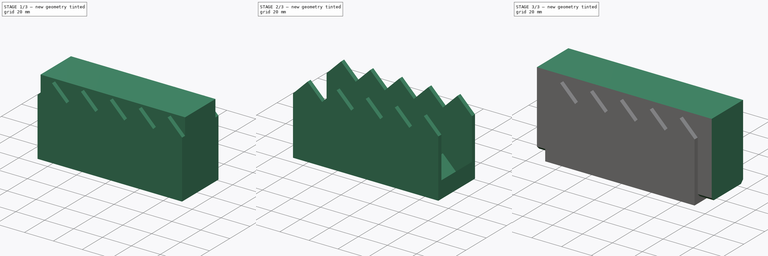
[diagram: build sequence overview — one tinted view per stage of 3, left to right]
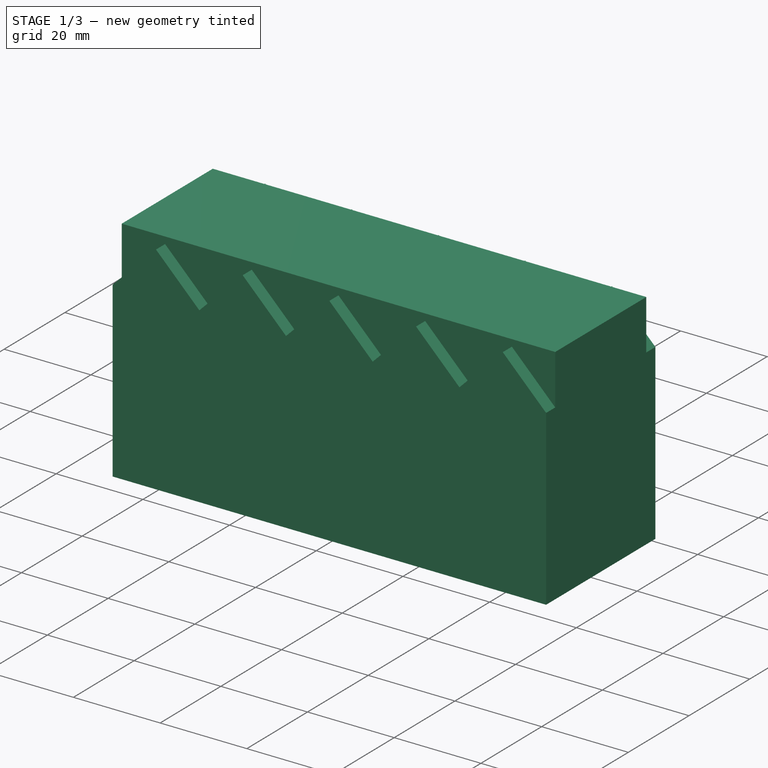
[diagram: stage 1 of 3 — iso view after this stage's code; geometry added in this stage tinted green]
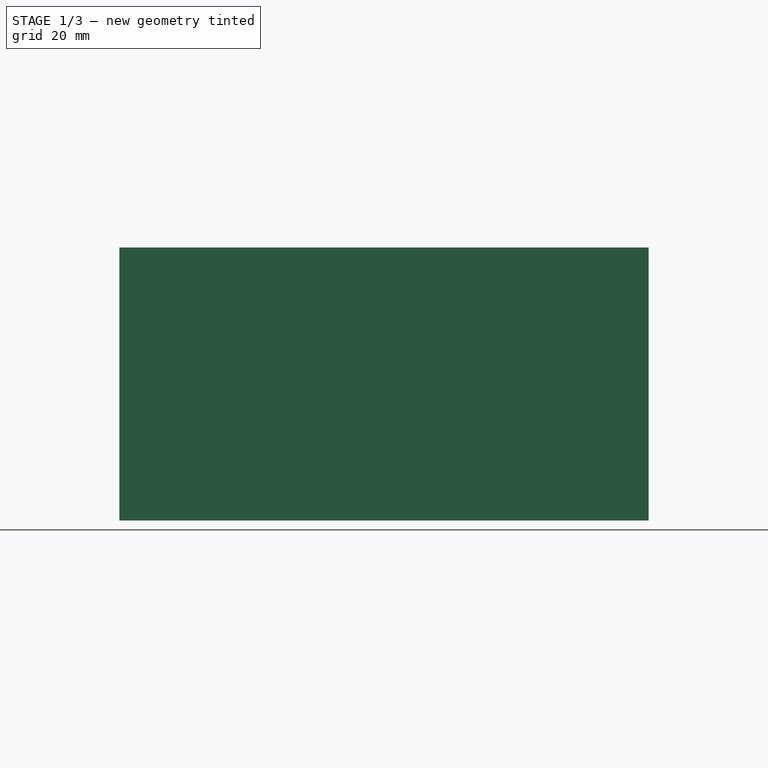
[diagram: stage 1 of 3 — front view after this stage's code; geometry added in this stage tinted green]
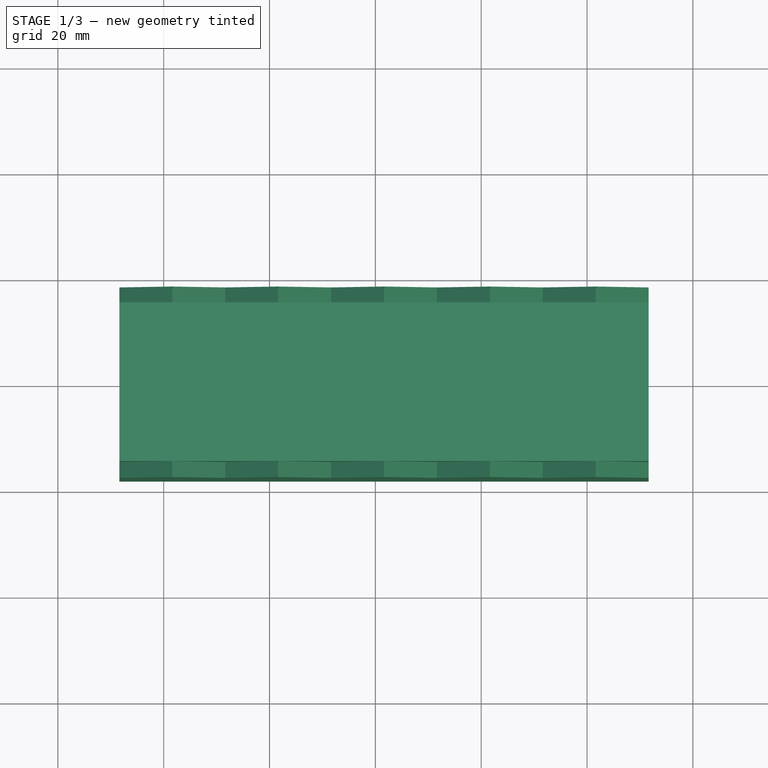
[diagram: stage 1 of 3 — top view after this stage's code; geometry added in this stage tinted green]
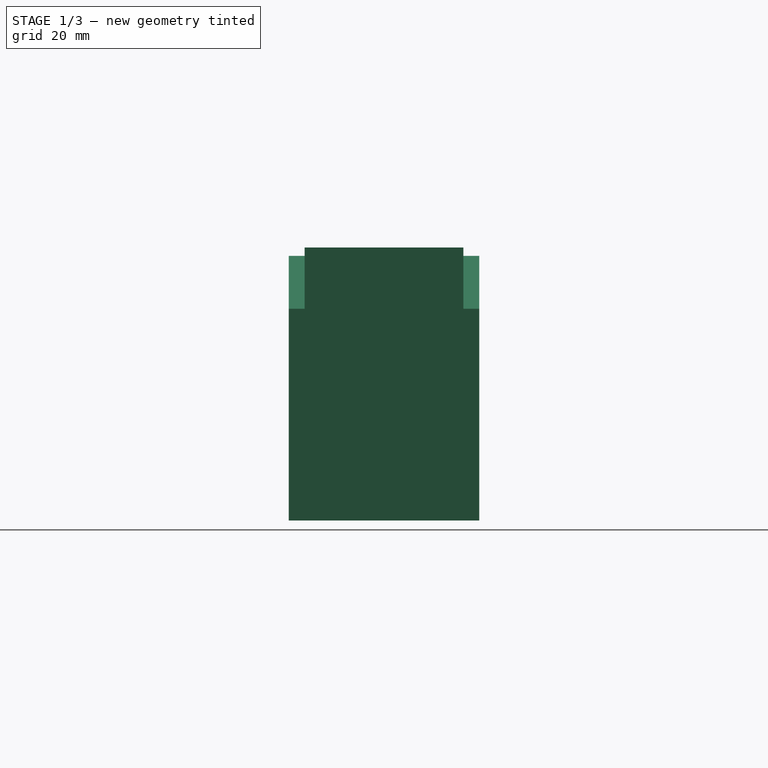
[diagram: stage 1 of 3 — right view after this stage's code; geometry added in this stage tinted green]
FCSTD DOCUMENT  (FreeCAD 0.19R24267 +148 (Git))
Label: Ex11
License: All rights reserved
LicenseURL: http://en.wikipedia.org/wiki/All_rights_reserved
objects: Sketcher::SketchObject×2, PartDesign::Pad×2, Part::Box×1, Part::Chamfer×1, PartDesign::Body×1, Part::Cut×1
note: 10 computed .brp shape members not serialized (recipe doc carries the construction recipe); baked Part::Feature solids carry a one-line shape summary decoded from their .brp

FEATURE [PartDesign::Pad] Pad  label="Main piece"
  Direction = (1,1,1)
  Length = 36
  Length2 = 100
  Midplane = true
  Placement = pos=(0,0,0) rot=(1,0,0;1.5708rad)
  Profile = -> Sketch
  Type = 0
FEATURE [PartDesign::Body] Body  label="Stairs"
  Group = -> [Sketch,Pad]
  Origin = -> Origin
  Tip = -> Pad
FEATURE [Sketcher::SketchObject] Sketch001
  FullyConstrained = false
  Placement = pos=(0,0,4) rot=(-1,0,0;1.5708rad)
  sketch-geometry (13):
    g0: LineSegment StartX=-28.3695 StartY=-23.7851 StartZ=0 EndX=71.6305 EndY=-23.7851 EndZ=0
    g1: LineSegment StartX=71.6305 StartY=-23.7851 StartZ=0 EndX=71.6305 EndY=16.2149 EndZ=0
    g2: LineSegment StartX=71.6305 StartY=16.2149 StartZ=0 EndX=61.6305 EndY=26.2149 EndZ=0
    g3: LineSegment StartX=61.6305 StartY=26.2149 StartZ=0 EndX=51.6305 EndY=16.2149 EndZ=0
    g4: LineSegment StartX=51.6305 StartY=16.2149 StartZ=0 EndX=41.6305 EndY=26.2149 EndZ=0
    g5: LineSegment StartX=41.6305 StartY=26.2149 StartZ=0 EndX=31.6305 EndY=16.2149 EndZ=0
    g6: LineSegment StartX=31.6305 StartY=16.2149 StartZ=0 EndX=21.6305 EndY=26.2149 EndZ=0
    g7: LineSegment StartX=21.6305 StartY=26.2149 StartZ=0 EndX=11.6305 EndY=16.2149 EndZ=0
    g8: LineSegment StartX=11.6305 StartY=16.2149 StartZ=0 EndX=1.63054 EndY=26.2149 EndZ=0
    g9: LineSegment StartX=1.63054 StartY=26.2149 StartZ=0 EndX=-8.36946 EndY=16.2149 EndZ=0
    g10: LineSegment StartX=-8.36946 StartY=16.2149 StartZ=0 EndX=-18.3695 EndY=26.2149 EndZ=0
    g11: LineSegment StartX=-18.3695 StartY=26.2149 StartZ=0 EndX=-28.3695 EndY=16.2149 EndZ=0
    g12: LineSegment StartX=-28.3695 StartY=16.2149 StartZ=0 EndX=-28.3695 EndY=-23.7851 EndZ=0
  constraints (38):
    c: Horizontal(g0)
    c: Vertical(g1)
    c: Coincident(g1,g2)
    c: Coincident(g2,g3)
    c: Coincident(g3,g4)
    c: Coincident(g4,g5)
    c: Coincident(g5,g6)
    c: Coincident(g6,g7)
    c: Coincident(g7,g8)
    c: Coincident(g8,g9)
    c: Coincident(g9,g10)
    c: Coincident(g10,g11)
    c: Coincident(g11,g12)
    c: Coincident(g12,g0)
    c: Vertical(g12)
    c: Horizontal(g2,g3)
    c: Horizontal(g4,g5)
    c: Horizontal(g6,g7)
    c: Horizontal(g8,g9)
    c: Horizontal(g10,g11)
    c: Horizontal(g3,g4)
    c: Horizontal(g5,g6)
    c: Horizontal(g7,g8)
    c: Horizontal(g9,g10)
    c: Equal(g2,g3)
    c: Equal(g3,g4)
    c: Equal(g4,g5)
    c: Equal(g5,g6)
    c: Equal(g6,g7)
    c: Equal(g7,g8)
    c: Equal(g8,g9)
    c: Equal(g9,g10)
    c: Equal(g10,g11)
    c: Angle(g11,g10) = 1.5708
    c: Coincident(g0,g1)
    c: DistanceY(g12,g12) = 40
    c: DistanceX(g0,g0) = 100
    c: DistanceX(g11,g9) = 20
FEATURE [PartDesign::Pad] Pad001  label="centerpiece"
  Direction = (1,1,1)
  Length = 30
  Length2 = 100
  Midplane = true
  Placement = pos=(0,0,4) rot=(-1,0,0;1.5708rad)
  Profile = -> Sketch001
  Type = 0
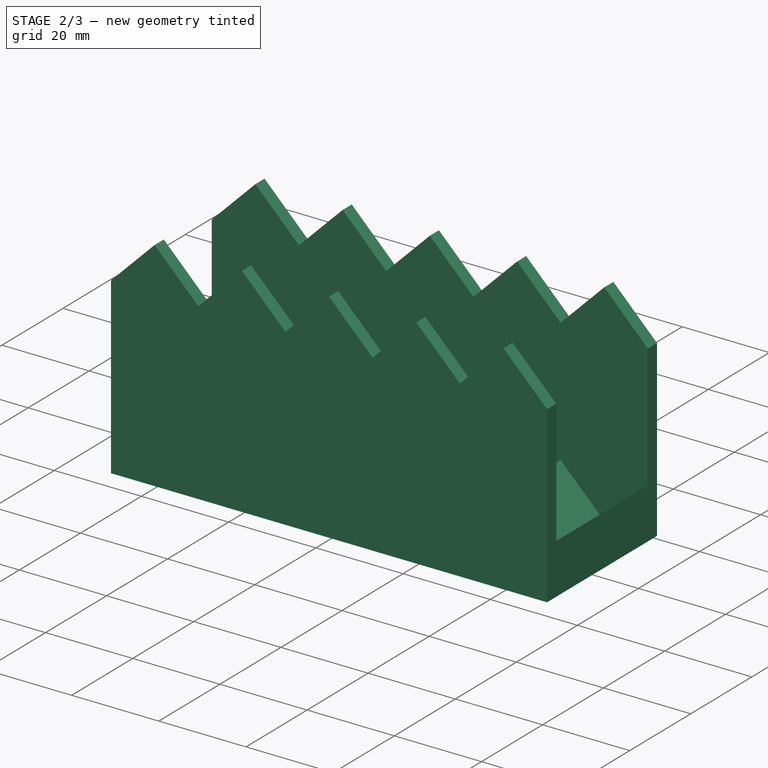
[diagram: stage 2 of 3 — iso view after this stage's code; geometry added in this stage tinted green]
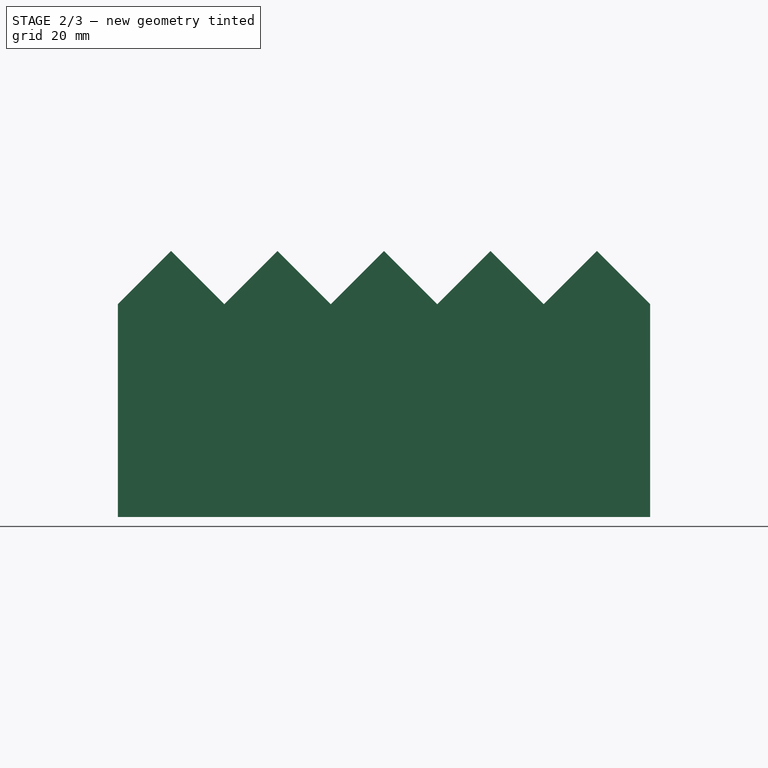
[diagram: stage 2 of 3 — front view after this stage's code; geometry added in this stage tinted green]
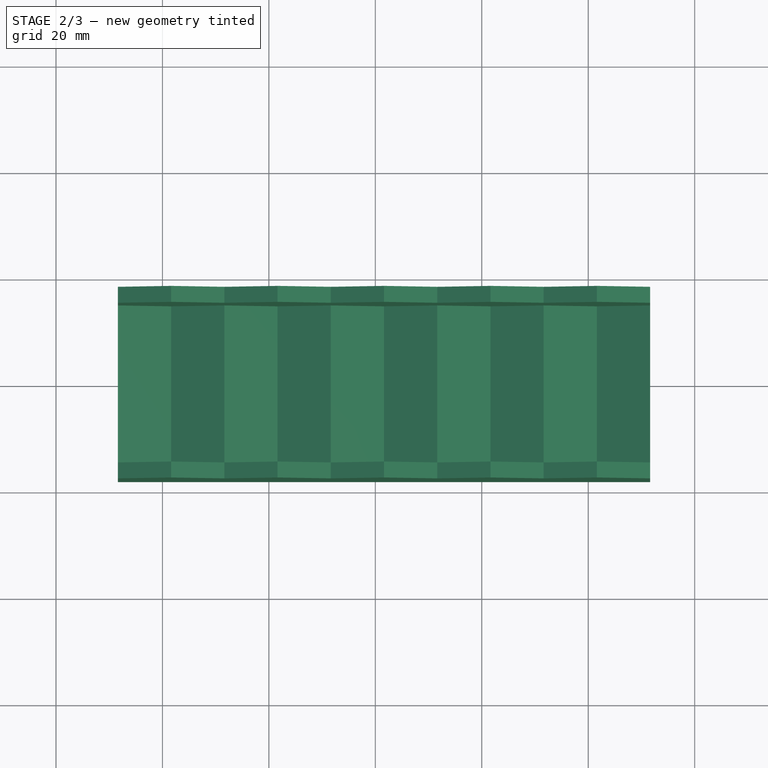
[diagram: stage 2 of 3 — top view after this stage's code; geometry added in this stage tinted green]
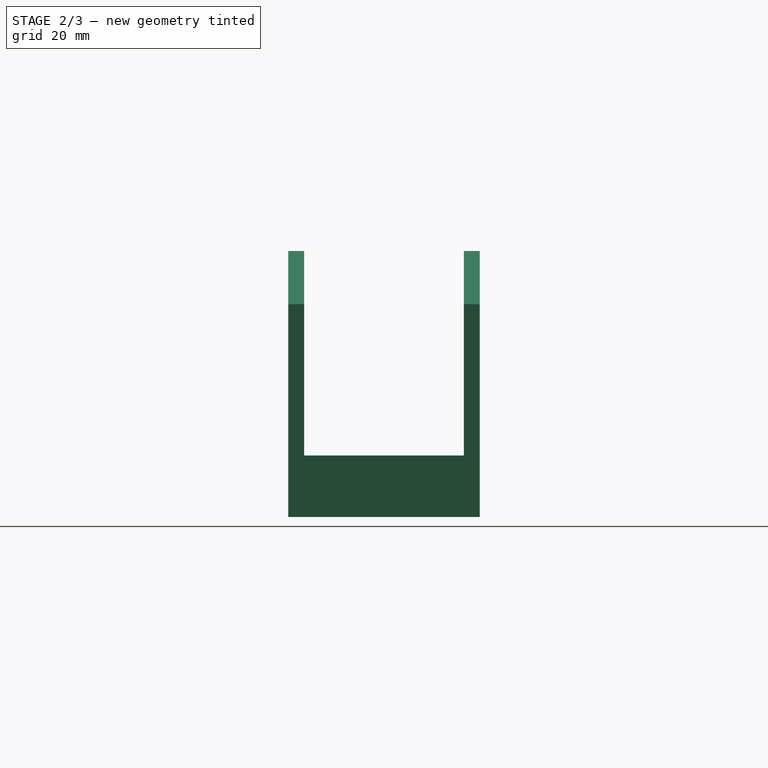
[diagram: stage 2 of 3 — right view after this stage's code; geometry added in this stage tinted green]
FEATURE [Part::Cut] Cut
  Base = -> Pad
  Tool = -> Pad001
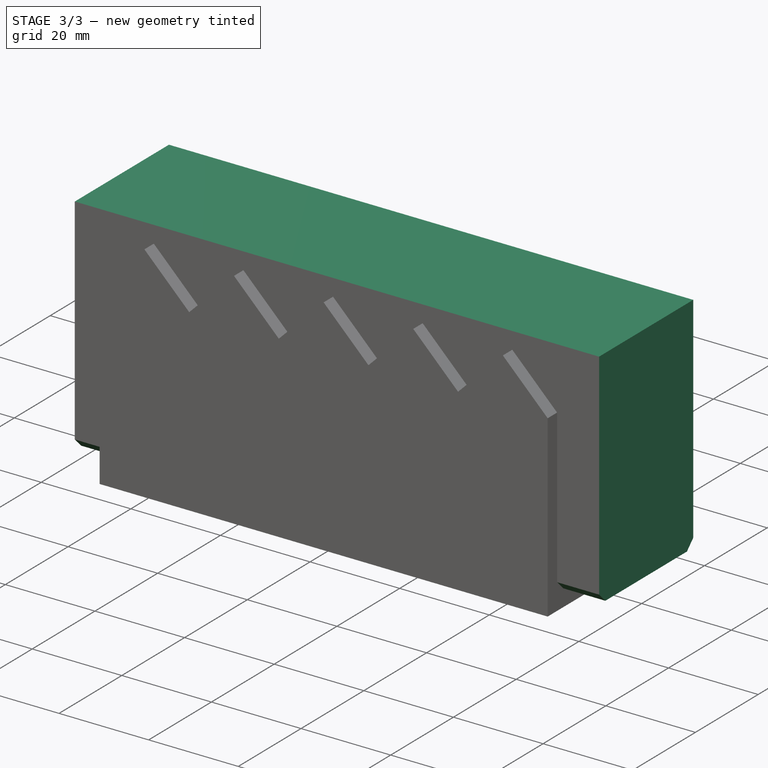
[diagram: stage 3 of 3 — iso view after this stage's code; geometry added in this stage tinted green]
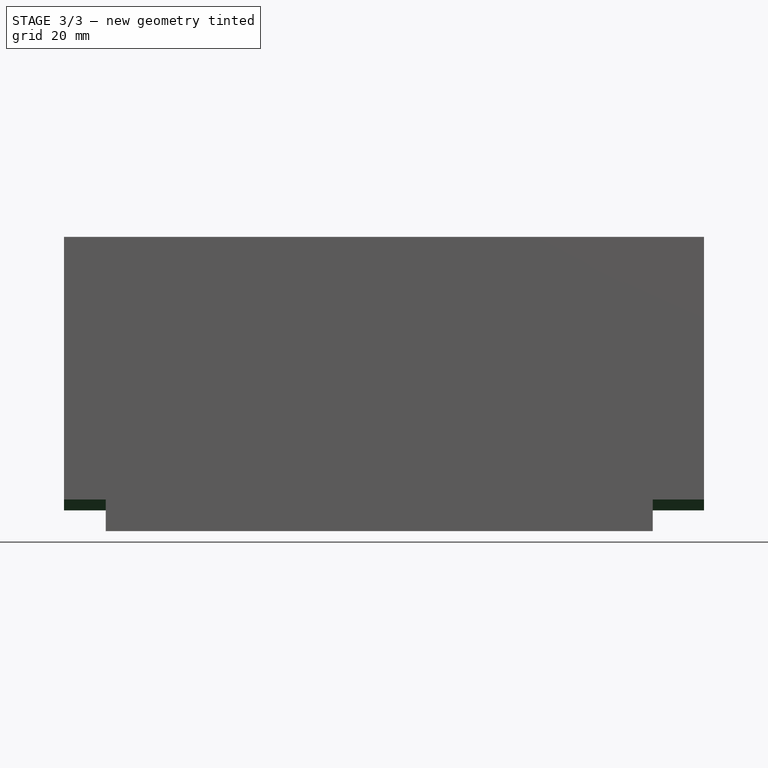
[diagram: stage 3 of 3 — front view after this stage's code; geometry added in this stage tinted green]
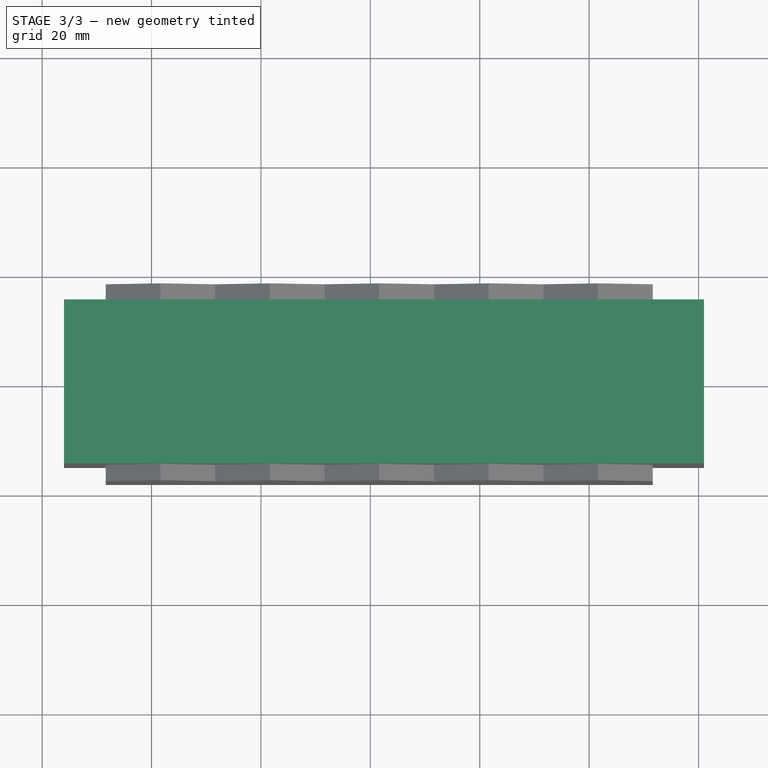
[diagram: stage 3 of 3 — top view after this stage's code; geometry added in this stage tinted green]
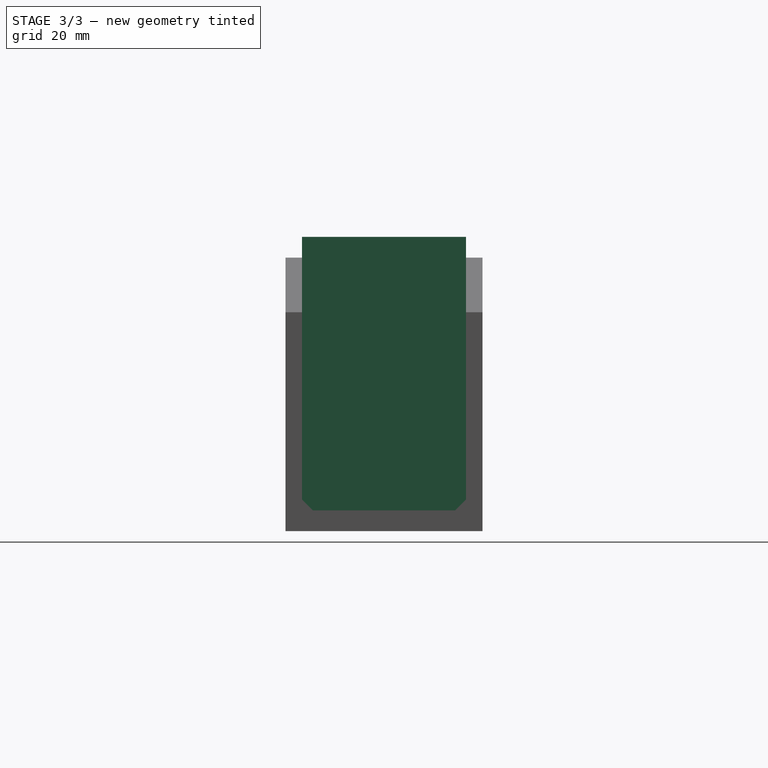
[diagram: stage 3 of 3 — right view after this stage's code; geometry added in this stage tinted green]
FEATURE [Sketcher::SketchObject] Sketch
  FullyConstrained = false
  Placement = pos=(0,0,0) rot=(1,0,0;1.5708rad)
  sketch-geometry (13):
    g0: LineSegment StartX=-28.3695 StartY=-23.7851 StartZ=0 EndX=71.6305 EndY=-23.7851 EndZ=0
    g1: LineSegment StartX=71.6305 StartY=-23.7851 StartZ=0 EndX=71.6305 EndY=16.2149 EndZ=0
    g2: LineSegment StartX=71.6305 StartY=16.2149 StartZ=0 EndX=61.6305 EndY=26.2149 EndZ=0
    g3: LineSegment StartX=61.6305 StartY=26.2149 StartZ=0 EndX=51.6305 EndY=16.2149 EndZ=0
    g4: LineSegment StartX=51.6305 StartY=16.2149 StartZ=0 EndX=41.6305 EndY=26.2149 EndZ=0
    g5: LineSegment StartX=41.6305 StartY=26.2149 StartZ=0 EndX=31.6305 EndY=16.2149 EndZ=0
    g6: LineSegment StartX=31.6305 StartY=16.2149 StartZ=0 EndX=21.6305 EndY=26.2149 EndZ=0
    g7: LineSegment StartX=21.6305 StartY=26.2149 StartZ=0 EndX=11.6305 EndY=16.2149 EndZ=0
    g8: LineSegment StartX=11.6305 StartY=16.2149 StartZ=0 EndX=1.63054 EndY=26.2149 EndZ=0
    g9: LineSegment StartX=1.63054 StartY=26.2149 StartZ=0 EndX=-8.36946 EndY=16.2149 EndZ=0
    g10: LineSegment StartX=-8.36946 StartY=16.2149 StartZ=0 EndX=-18.3695 EndY=26.2149 EndZ=0
    g11: LineSegment StartX=-18.3695 StartY=26.2149 StartZ=0 EndX=-28.3695 EndY=16.2149 EndZ=0
    g12: LineSegment StartX=-28.3695 StartY=16.2149 StartZ=0 EndX=-28.3695 EndY=-23.7851 EndZ=0
  constraints (38):
    c: Horizontal(g0)
    c: Vertical(g1)
    c: Coincident(g1,g2)
    c: Coincident(g2,g3)
    c: Coincident(g3,g4)
    c: Coincident(g4,g5)
    c: Coincident(g5,g6)
    c: Coincident(g6,g7)
    c: Coincident(g7,g8)
    c: Coincident(g8,g9)
    c: Coincident(g9,g10)
    c: Coincident(g10,g11)
    c: Coincident(g11,g12)
    c: Coincident(g12,g0)
    c: Vertical(g12)
    c: Horizontal(g2,g3)
    c: Horizontal(g4,g5)
    c: Horizontal(g6,g7)
    c: Horizontal(g8,g9)
    c: Horizontal(g10,g11)
    c: Horizontal(g3,g4)
    c: Horizontal(g5,g6)
    c: Horizontal(g7,g8)
    c: Horizontal(g9,g10)
    c: Equal(g2,g3)
    c: Equal(g3,g4)
    c: Equal(g4,g5)
    c: Equal(g5,g6)
    c: Equal(g6,g7)
    c: Equal(g7,g8)
    c: Equal(g8,g9)
    c: Equal(g9,g10)
    c: Equal(g10,g11)
    c: Angle(g11,g10) = 1.5708
    c: Coincident(g0,g1)
    c: DistanceY(g12,g12) = 40
    c: DistanceX(g0,g0) = 100
    c: DistanceX(g11,g9) = 20
FEATURE [Part::Box] Box  label="Cube"
  AttacherType = Attacher::AttachEngine3D
  Height = 50
  Length = 117
  Placement = pos=(-36,-15,-20) rot=(0,0,1;0rad)
  Width = 30
FEATURE [Part::Chamfer] Chamfer
  Base = -> Box
  Edges = 2 edges r=2: [Edge9,Edge11]
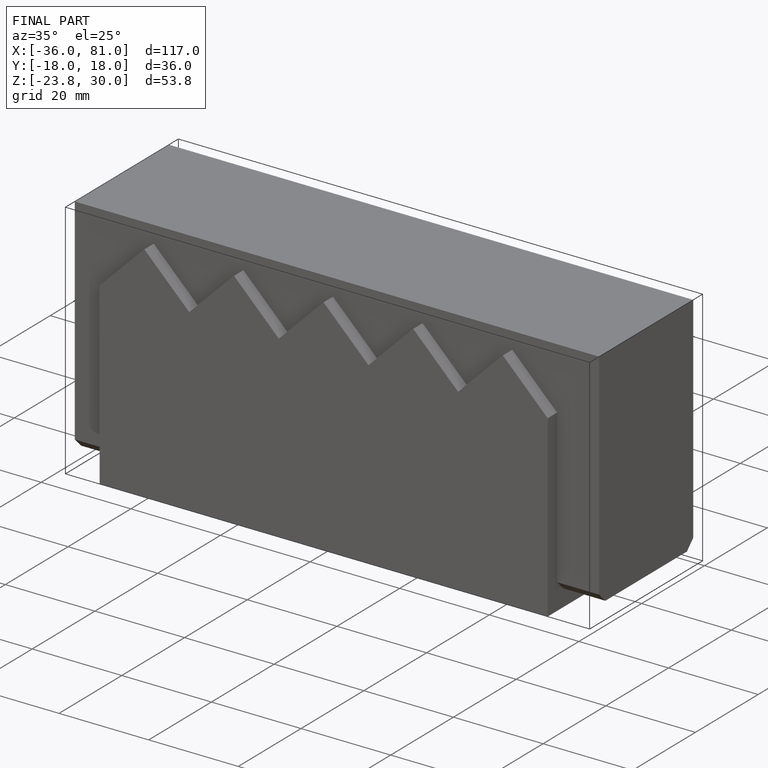
[diagram: finished part — iso view with bounding-box wireframe]
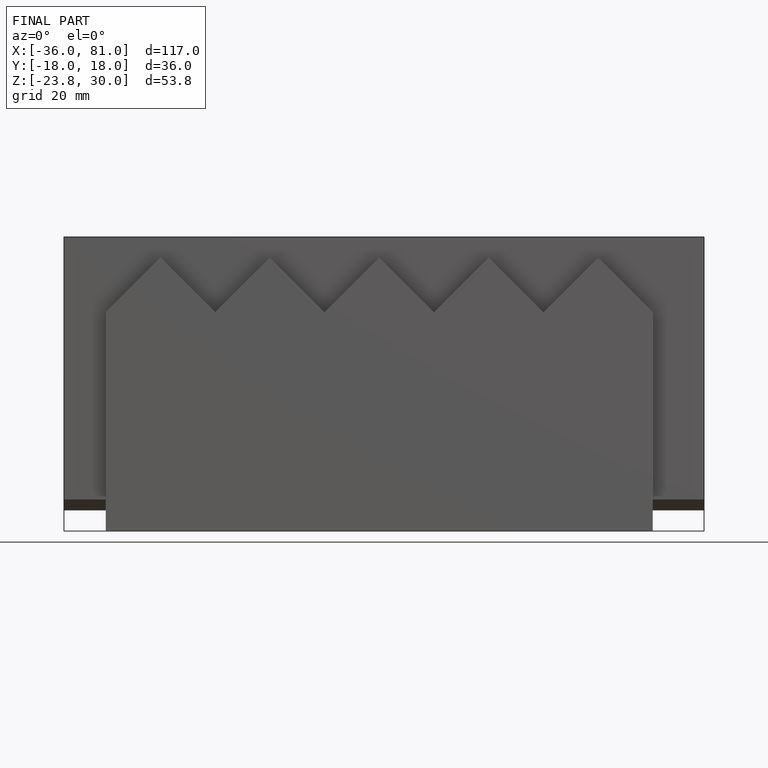
[diagram: finished part — front view with bounding-box wireframe]
